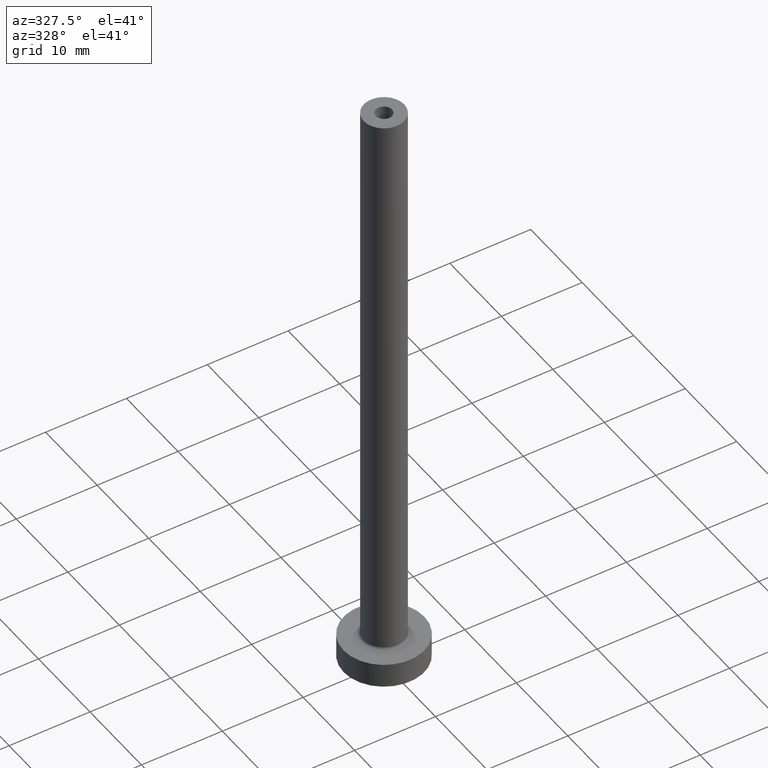
[diagram: clean part render]
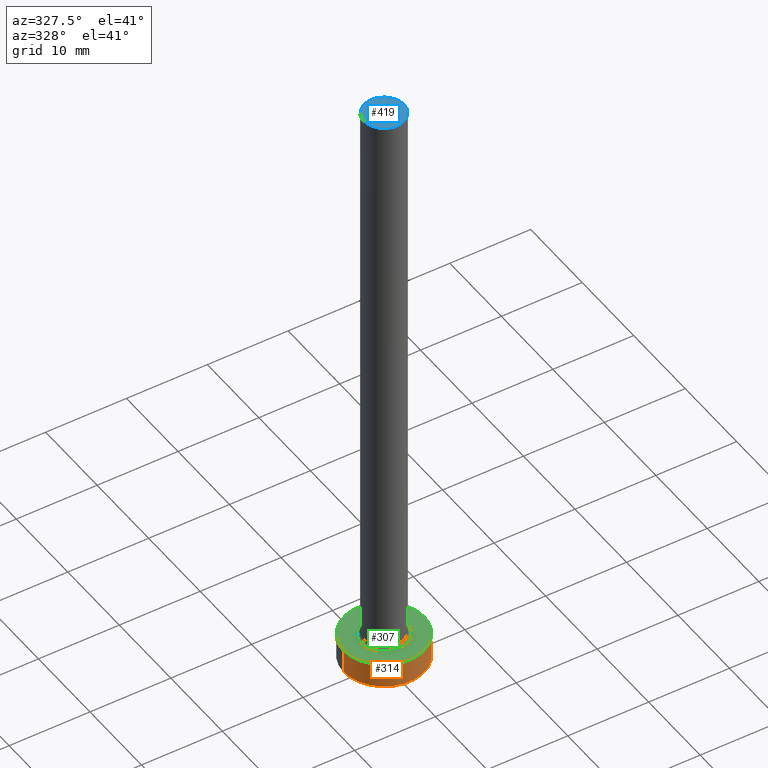
[diagram: same view with three faces highlighted in distinct colors, each labeled with its STEP entity id]
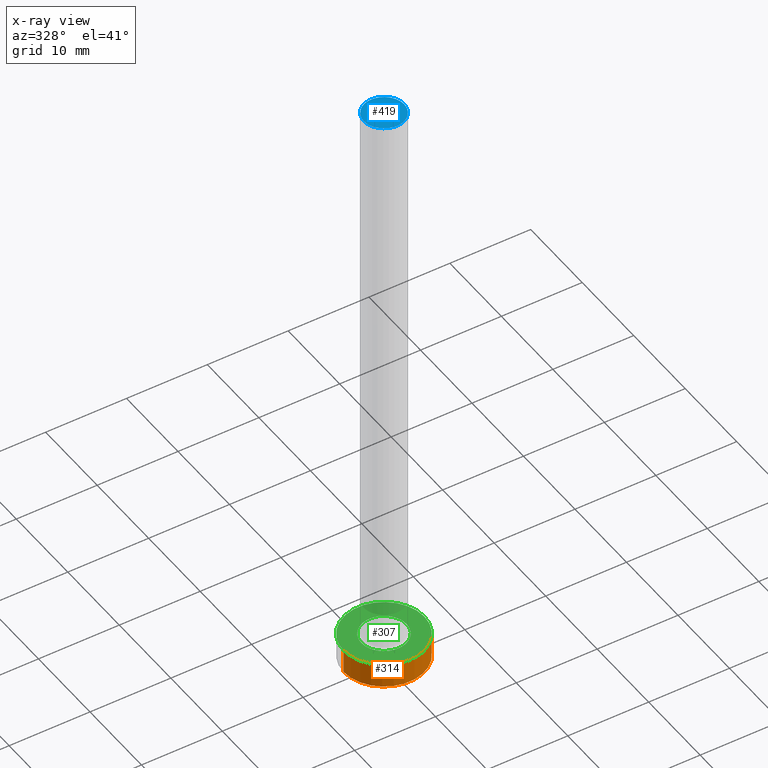
[diagram: x-ray of the same camera — body ghosted, the three highlighted faces saturated]
A machine part, auxiliary view with three faces highlighted in distinct colors.
The next image is the same camera in x-ray (body ghosted, the three faces saturated) — at least one of them is partly hidden behind the body in this view.
Their STEP definitions:

[orange] entity #314 — the highlighted cylindrical surface (partial cylindrical patch) has radius 5 mm, axis along (-0, -0, -1).
#15 = DIRECTION ( 'NONE',  ( 0.000000000000000000, 0.000000000000000000, 1.000000000000000000 ) ) ;
#20 = VERTEX_POINT ( 'NONE', #178 ) ;
#35 = FACE_OUTER_BOUND ( 'NONE', #407, .T. ) ;
#49 = CIRCLE ( 'NONE', #136, 5.000000000000000000 ) ;
#57 = LINE ( 'NONE', #200, #189 ) ;
#58 = LINE ( 'NONE', #416, #143 ) ;
#79 = CIRCLE ( 'NONE', #349, 5.000000000000000000 ) ;
#100 = AXIS2_PLACEMENT_3D ( 'NONE', #187, #455, #400 ) ;
#108 = ORIENTED_EDGE ( 'NONE', *, *, #210, .T. ) ;
#129 = EDGE_CURVE ( 'NONE', #301, #201, #79, .T. ) ;
#136 = AXIS2_PLACEMENT_3D ( 'NONE', #382, #15, #157 ) ;
#143 = VECTOR ( 'NONE', #238, 1000.000000000000000 ) ;
#157 = DIRECTION ( 'NONE',  ( 1.000000000000000000, 0.000000000000000000, 0.000000000000000000 ) ) ;
#170 = DIRECTION ( 'NONE',  ( 1.000000000000000000, 0.000000000000000000, 0.000000000000000000 ) ) ;
#171 = EDGE_CURVE ( 'NONE', #301, #20, #57, .T. ) ;
#178 = CARTESIAN_POINT ( 'NONE',  ( -5.000000000000000000, 0.000000000000000000, 0.000000000000000000 ) ) ;
#187 = CARTESIAN_POINT ( 'NONE',  ( 0.000000000000000000, 0.000000000000000000, 3.000000000000000000 ) ) ;
#189 = VECTOR ( 'NONE', #339, 1000.000000000000000 ) ;
#190 = CYLINDRICAL_SURFACE ( 'NONE', #100, 5.000000000000000000 ) ;
#200 = CARTESIAN_POINT ( 'NONE',  ( -5.000000000000000000, 0.000000000000000000, 3.000000000000000000 ) ) ;
#201 = VERTEX_POINT ( 'NONE', #267 ) ;
#204 = EDGE_CURVE ( 'NONE', #201, #338, #58, .T. ) ;
#210 = EDGE_CURVE ( 'NONE', #20, #338, #49, .T. ) ;
#217 = ORIENTED_EDGE ( 'NONE', *, *, #129, .F. ) ;
#238 = DIRECTION ( 'NONE',  ( -0.000000000000000000, -0.000000000000000000, -1.000000000000000000 ) ) ;
#267 = CARTESIAN_POINT ( 'NONE',  ( 5.000000000000000000, 6.123233995736766282E-16, 3.000000000000000000 ) ) ;
#275 = DIRECTION ( 'NONE',  ( 0.000000000000000000, 0.000000000000000000, 1.000000000000000000 ) ) ;
#282 = CARTESIAN_POINT ( 'NONE',  ( -5.000000000000000000, 0.000000000000000000, 3.000000000000000000 ) ) ;
#301 = VERTEX_POINT ( 'NONE', #282 ) ;
#314 = ADVANCED_FACE ( 'NONE', ( #35 ), #190, .T. ) ;
#315 = ORIENTED_EDGE ( 'NONE', *, *, #204, .F. ) ;
#320 = ORIENTED_EDGE ( 'NONE', *, *, #171, .T. ) ;
#338 = VERTEX_POINT ( 'NONE', #434 ) ;
#339 = DIRECTION ( 'NONE',  ( -0.000000000000000000, -0.000000000000000000, -1.000000000000000000 ) ) ;
#349 = AXIS2_PLACEMENT_3D ( 'NONE', #446, #275, #170 ) ;
#382 = CARTESIAN_POINT ( 'NONE',  ( 0.000000000000000000, 0.000000000000000000, 0.000000000000000000 ) ) ;
#400 = DIRECTION ( 'NONE',  ( -1.000000000000000000, 0.000000000000000000, 0.000000000000000000 ) ) ;
#407 = EDGE_LOOP ( 'NONE', ( #315, #217, #320, #108 ) ) ;
#416 = CARTESIAN_POINT ( 'NONE',  ( 5.000000000000000000, 6.123233995736766282E-16, 3.000000000000000000 ) ) ;
#434 = CARTESIAN_POINT ( 'NONE',  ( 5.000000000000000000, 6.123233995736766282E-16, 0.000000000000000000 ) ) ;
#446 = CARTESIAN_POINT ( 'NONE',  ( 0.000000000000000000, 0.000000000000000000, 3.000000000000000000 ) ) ;
#455 = DIRECTION ( 'NONE',  ( -0.000000000000000000, -0.000000000000000000, -1.000000000000000000 ) ) ;

[blue] entity #419 — the highlighted planar face has unit normal (0, 0, 1).
#9 = DIRECTION ( 'NONE',  ( 1.000000000000000000, 0.000000000000000000, 0.000000000000000000 ) ) ;
#21 = CARTESIAN_POINT ( 'NONE',  ( 0.000000000000000000, 0.000000000000000000, 75.00000000000001421 ) ) ;
#22 = CIRCLE ( 'NONE', #103, 2.500000000000000000 ) ;
#23 = DIRECTION ( 'NONE',  ( 1.000000000000000000, 0.000000000000000000, 0.000000000000000000 ) ) ;
#37 = PLANE ( 'NONE',  #118 ) ;
#38 = AXIS2_PLACEMENT_3D ( 'NONE', #99, #116, #9 ) ;
#47 = CARTESIAN_POINT ( 'NONE',  ( 0.000000000000000000, 0.000000000000000000, 75.00000000000001421 ) ) ;
#53 = DIRECTION ( 'NONE',  ( 0.000000000000000000, 0.000000000000000000, 1.000000000000000000 ) ) ;
#62 = CARTESIAN_POINT ( 'NONE',  ( 1.000000000000000000, 1.224646799147353207E-16, 75.00000000000001421 ) ) ;
#63 = CIRCLE ( 'NONE', #228, 1.000000000000000000 ) ;
#64 = EDGE_CURVE ( 'NONE', #438, #459, #245, .T. ) ;
#69 = ORIENTED_EDGE ( 'NONE', *, *, #381, .T. ) ;
#71 = CARTESIAN_POINT ( 'NONE',  ( 0.000000000000000000, 0.000000000000000000, 75.00000000000001421 ) ) ;
#83 = EDGE_CURVE ( 'NONE', #459, #438, #63, .T. ) ;
#92 = EDGE_LOOP ( 'NONE', ( #305, #69 ) ) ;
#96 = DIRECTION ( 'NONE',  ( 0.000000000000000000, 0.000000000000000000, 1.000000000000000000 ) ) ;
#99 = CARTESIAN_POINT ( 'NONE',  ( 0.000000000000000000, 0.000000000000000000, 75.00000000000001421 ) ) ;
#103 = AXIS2_PLACEMENT_3D ( 'NONE', #21, #53, #23 ) ;
#116 = DIRECTION ( 'NONE',  ( 0.000000000000000000, 0.000000000000000000, 1.000000000000000000 ) ) ;
#118 = AXIS2_PLACEMENT_3D ( 'NONE', #71, #251, #263 ) ;
#126 = EDGE_CURVE ( 'NONE', #420, #292, #22, .T. ) ;
#181 = ORIENTED_EDGE ( 'NONE', *, *, #83, .F. ) ;
#185 = CARTESIAN_POINT ( 'NONE',  ( -2.500000000000000000, 0.000000000000000000, 75.00000000000001421 ) ) ;
#188 = CIRCLE ( 'NONE', #38, 2.500000000000000000 ) ;
#228 = AXIS2_PLACEMENT_3D ( 'NONE', #47, #96, #374 ) ;
#240 = DIRECTION ( 'NONE',  ( 0.000000000000000000, 0.000000000000000000, 1.000000000000000000 ) ) ;
#243 = DIRECTION ( 'NONE',  ( 1.000000000000000000, 0.000000000000000000, 0.000000000000000000 ) ) ;
#245 = CIRCLE ( 'NONE', #410, 1.000000000000000000 ) ;
#251 = DIRECTION ( 'NONE',  ( 0.000000000000000000, 0.000000000000000000, 1.000000000000000000 ) ) ;
#263 = DIRECTION ( 'NONE',  ( 1.000000000000000000, 0.000000000000000000, -0.000000000000000000 ) ) ;
#265 = CARTESIAN_POINT ( 'NONE',  ( 2.500000000000000000, 3.061616997868383141E-16, 75.00000000000001421 ) ) ;
#283 = CARTESIAN_POINT ( 'NONE',  ( -1.000000000000000000, 0.000000000000000000, 75.00000000000001421 ) ) ;
#292 = VERTEX_POINT ( 'NONE', #265 ) ;
#305 = ORIENTED_EDGE ( 'NONE', *, *, #126, .T. ) ;
#328 = FACE_BOUND ( 'NONE', #404, .T. ) ;
#351 = FACE_OUTER_BOUND ( 'NONE', #92, .T. ) ;
#374 = DIRECTION ( 'NONE',  ( 1.000000000000000000, 0.000000000000000000, 0.000000000000000000 ) ) ;
#380 = CARTESIAN_POINT ( 'NONE',  ( 0.000000000000000000, 0.000000000000000000, 75.00000000000001421 ) ) ;
#381 = EDGE_CURVE ( 'NONE', #292, #420, #188, .T. ) ;
#404 = EDGE_LOOP ( 'NONE', ( #432, #181 ) ) ;
#410 = AXIS2_PLACEMENT_3D ( 'NONE', #380, #240, #243 ) ;
#419 = ADVANCED_FACE ( 'NONE', ( #328, #351 ), #37, .T. ) ;
#420 = VERTEX_POINT ( 'NONE', #185 ) ;
#432 = ORIENTED_EDGE ( 'NONE', *, *, #64, .F. ) ;
#438 = VERTEX_POINT ( 'NONE', #283 ) ;
#459 = VERTEX_POINT ( 'NONE', #62 ) ;

[green] entity #307 — the highlighted planar face has unit normal (0, 0, 1).
#6 = EDGE_LOOP ( 'NONE', ( #340, #144 ) ) ;
#26 = AXIS2_PLACEMENT_3D ( 'NONE', #117, #280, #418 ) ;
#31 = VERTEX_POINT ( 'NONE', #141 ) ;
#41 = FACE_BOUND ( 'NONE', #52, .T. ) ;
#46 = ORIENTED_EDGE ( 'NONE', *, *, #260, .T. ) ;
#52 = EDGE_LOOP ( 'NONE', ( #46, #268 ) ) ;
#61 = AXIS2_PLACEMENT_3D ( 'NONE', #163, #311, #304 ) ;
#77 = CARTESIAN_POINT ( 'NONE',  ( 0.000000000000000000, 0.000000000000000000, 3.000000000000000000 ) ) ;
#79 = CIRCLE ( 'NONE', #349, 5.000000000000000000 ) ;
#110 = CIRCLE ( 'NONE', #348, 2.799999999999999822 ) ;
#117 = CARTESIAN_POINT ( 'NONE',  ( 0.000000000000000000, 0.000000000000000000, 3.000000000000000000 ) ) ;
#129 = EDGE_CURVE ( 'NONE', #301, #201, #79, .T. ) ;
#139 = CARTESIAN_POINT ( 'NONE',  ( 0.000000000000000000, 0.000000000000000000, 3.000000000000000000 ) ) ;
#141 = CARTESIAN_POINT ( 'NONE',  ( 2.799999999999999822, 0.000000000000000000, 2.999999999999998668 ) ) ;
#144 = ORIENTED_EDGE ( 'NONE', *, *, #331, .T. ) ;
#163 = CARTESIAN_POINT ( 'NONE',  ( 0.000000000000000000, 0.000000000000000000, 3.000000000000000000 ) ) ;
#170 = DIRECTION ( 'NONE',  ( 1.000000000000000000, 0.000000000000000000, 0.000000000000000000 ) ) ;
#180 = CIRCLE ( 'NONE', #61, 2.799999999999999822 ) ;
#201 = VERTEX_POINT ( 'NONE', #267 ) ;
#260 = EDGE_CURVE ( 'NONE', #31, #262, #180, .T. ) ;
#262 = VERTEX_POINT ( 'NONE', #312 ) ;
#267 = CARTESIAN_POINT ( 'NONE',  ( 5.000000000000000000, 6.123233995736766282E-16, 3.000000000000000000 ) ) ;
#268 = ORIENTED_EDGE ( 'NONE', *, *, #447, .T. ) ;
#275 = DIRECTION ( 'NONE',  ( 0.000000000000000000, 0.000000000000000000, 1.000000000000000000 ) ) ;
#280 = DIRECTION ( 'NONE',  ( 0.000000000000000000, 0.000000000000000000, 1.000000000000000000 ) ) ;
#282 = CARTESIAN_POINT ( 'NONE',  ( -5.000000000000000000, 0.000000000000000000, 3.000000000000000000 ) ) ;
#293 = DIRECTION ( 'NONE',  ( 1.000000000000000000, 0.000000000000000000, 0.000000000000000000 ) ) ;
#296 = DIRECTION ( 'NONE',  ( 1.000000000000000000, 0.000000000000000000, 0.000000000000000000 ) ) ;
#301 = VERTEX_POINT ( 'NONE', #282 ) ;
#304 = DIRECTION ( 'NONE',  ( 1.000000000000000000, 0.000000000000000000, 0.000000000000000000 ) ) ;
#307 = ADVANCED_FACE ( 'NONE', ( #41, #330 ), #396, .T. ) ;
#311 = DIRECTION ( 'NONE',  ( -0.000000000000000000, -0.000000000000000000, -1.000000000000000000 ) ) ;
#312 = CARTESIAN_POINT ( 'NONE',  ( -2.799999999999999822, 3.429011037612589276E-16, 2.999999999999998668 ) ) ;
#330 = FACE_OUTER_BOUND ( 'NONE', #6, .T. ) ;
#331 = EDGE_CURVE ( 'NONE', #201, #301, #408, .T. ) ;
#340 = ORIENTED_EDGE ( 'NONE', *, *, #129, .T. ) ;
#348 = AXIS2_PLACEMENT_3D ( 'NONE', #139, #431, #296 ) ;
#349 = AXIS2_PLACEMENT_3D ( 'NONE', #446, #275, #170 ) ;
#372 = AXIS2_PLACEMENT_3D ( 'NONE', #77, #421, #293 ) ;
#396 = PLANE ( 'NONE',  #26 ) ;
#408 = CIRCLE ( 'NONE', #372, 5.000000000000000000 ) ;
#418 = DIRECTION ( 'NONE',  ( 1.000000000000000000, 0.000000000000000000, -0.000000000000000000 ) ) ;
#421 = DIRECTION ( 'NONE',  ( 0.000000000000000000, 0.000000000000000000, 1.000000000000000000 ) ) ;
#431 = DIRECTION ( 'NONE',  ( -0.000000000000000000, -0.000000000000000000, -1.000000000000000000 ) ) ;
#446 = CARTESIAN_POINT ( 'NONE',  ( 0.000000000000000000, 0.000000000000000000, 3.000000000000000000 ) ) ;
#447 = EDGE_CURVE ( 'NONE', #262, #31, #110, .T. ) ;